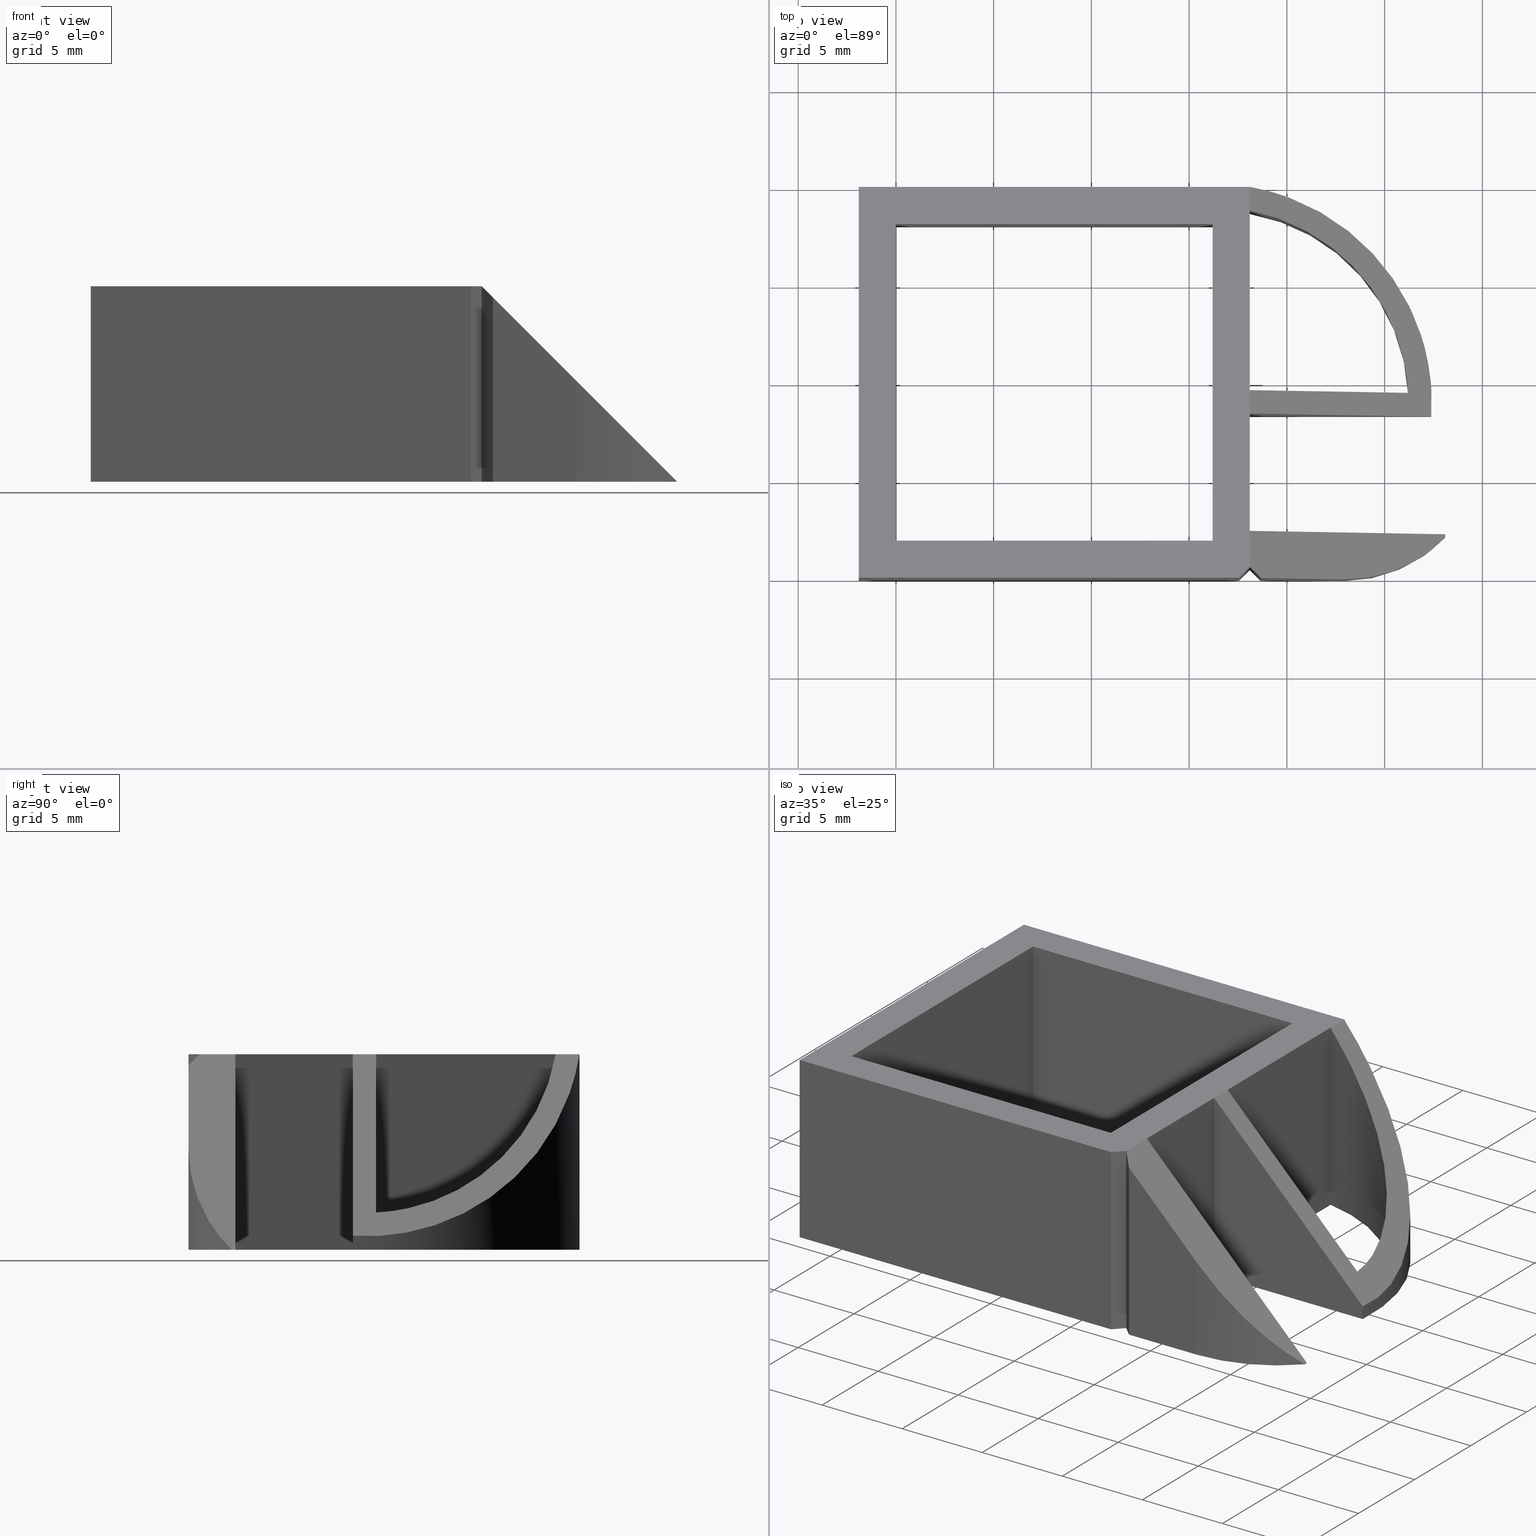
[diagram: canonical four-view strip — front | top / right | iso, engineering-drawing reading convention]
A machine part, canonical four-view strip (front | top / right | iso — engineering-drawing reading convention). The complete STEP part file that produces these views, byte-faithful:
ISO-10303-21;
HEADER;
/****************************************************************
 * Generated by software with PDE/Lib inside                    *
 * PDElib Version v4.4, created Mon 02/23/2004                  *
 * International Technegroup Inc. (www.iti-oh.com)              *
 ****************************************************************/
FILE_DESCRIPTION(('STEP AP203'),'2;1');
FILE_NAME('XF62011G.stp','2011-02-02T12:55:24',(''),(''),'2009.3.110','THINKDESIGN','');
FILE_SCHEMA(('CONFIG_CONTROL_DESIGN'));
ENDSEC;
DATA;
#2=CARTESIAN_POINT('',(28.100000000001501,-7.599999999994865,10.0));
#3=DIRECTION('',(2.022429E-013,-1.0,-1.224647E-016));
#4=DIRECTION('',(-1.0,-2.022429E-013,-2.784524E-030));
#5=AXIS2_PLACEMENT_3D('',#2,#3,#4);
#6=PLANE('',#5);
#7=CARTESIAN_POINT('',(18.100000000001501,-7.599999999996888,10.0));
#8=VERTEX_POINT('',#7);
#9=CARTESIAN_POINT('',(28.100000000001501,-7.599999999994865,0.0));
#10=VERTEX_POINT('',#9);
#11=CARTESIAN_POINT('',(18.100000000001501,-7.599999999996888,10.0));
#12=DIRECTION('',(0.707106781186547,1.430668E-013,-0.707106781186548));
#13=VECTOR('',#12,14.142135623730953);
#14=LINE('',#11,#13);
#15=EDGE_CURVE('',#8,#10,#14,.T.);
#16=ORIENTED_EDGE('',*,*,#15,.T.);
#17=CARTESIAN_POINT('',(18.100000000001501,-7.599999999996888,0.0));
#18=VERTEX_POINT('',#17);
#19=CARTESIAN_POINT('',(28.100000000001501,-7.599999999994865,2.784524E-029));
#20=DIRECTION('',(-1.0,-2.022382E-013,-2.784524E-030));
#21=VECTOR('',#20,10.0);
#22=LINE('',#19,#21);
#23=EDGE_CURVE('',#10,#18,#22,.T.);
#24=ORIENTED_EDGE('',*,*,#23,.T.);
#25=CARTESIAN_POINT('',(18.100000000001501,-7.599999999996888,10.0));
#26=DIRECTION('',(0.0,0.0,-1.0));
#27=VECTOR('',#26,10.0);
#28=LINE('',#25,#27);
#29=EDGE_CURVE('',#8,#18,#28,.T.);
#30=ORIENTED_EDGE('',*,*,#29,.F.);
#31=EDGE_LOOP('',(#16,#24,#30));
#32=FACE_OUTER_BOUND('',#31,.T.);
#33=ADVANCED_FACE('',(#32),#6,.F.);
#34=CARTESIAN_POINT('',(18.100000000001501,-7.599999999996888,10.0));
#35=DIRECTION('',(-1.0,-1.795055E-013,0.0));
#36=DIRECTION('',(-1.795055E-013,1.0,1.224647E-016));
#37=AXIS2_PLACEMENT_3D('',#34,#35,#36);
#38=PLANE('',#37);
#39=CARTESIAN_POINT('',(18.100000000000424,-1.599999999996774,0.0));
#40=VERTEX_POINT('',#39);
#41=CARTESIAN_POINT('',(18.100000000001501,-7.599999999996888,-7.347881E-016));
#42=DIRECTION('',(-1.794120E-013,1.0,1.224647E-016));
#43=VECTOR('',#42,6.000000000000114);
#44=LINE('',#41,#43);
#45=EDGE_CURVE('',#18,#40,#44,.T.);
#46=ORIENTED_EDGE('',*,*,#45,.T.);
#47=CARTESIAN_POINT('',(18.100000000000424,-1.599999999996774,10.0));
#48=VERTEX_POINT('',#47);
#49=CARTESIAN_POINT('',(18.100000000000424,-1.599999999996774,10.0));
#50=DIRECTION('',(0.0,0.0,-1.0));
#51=VECTOR('',#50,10.0);
#52=LINE('',#49,#51);
#53=EDGE_CURVE('',#48,#40,#52,.T.);
#54=ORIENTED_EDGE('',*,*,#53,.F.);
#55=CARTESIAN_POINT('',(18.100000000001501,-7.599999999996888,10.0));
#56=DIRECTION('',(-1.794120E-013,1.0,0.0));
#57=VECTOR('',#56,6.000000000000114);
#58=LINE('',#55,#57);
#59=EDGE_CURVE('',#8,#48,#58,.T.);
#60=ORIENTED_EDGE('',*,*,#59,.F.);
#61=ORIENTED_EDGE('',*,*,#29,.T.);
#62=EDGE_LOOP('',(#46,#54,#60,#61));
#63=FACE_OUTER_BOUND('',#62,.T.);
#64=ADVANCED_FACE('',(#63),#38,.F.);
#65=CARTESIAN_POINT('',(18.100000000000424,-1.599999999996774,10.0));
#66=DIRECTION('',(-1.672615E-013,1.0,1.224647E-016));
#67=DIRECTION('',(1.0,1.672615E-013,-1.499464E-030));
#68=AXIS2_PLACEMENT_3D('',#65,#66,#67);
#69=PLANE('',#68);
#70=CARTESIAN_POINT('',(27.385068294310091,-1.599999999995107,0.0));
#71=VERTEX_POINT('',#70);
#72=CARTESIAN_POINT('',(18.100000000000424,-1.599999999996774,1.392262E-029));
#73=DIRECTION('',(1.0,1.672556E-013,-1.499464E-030));
#74=VECTOR('',#73,9.285068294309895);
#75=LINE('',#72,#74);
#76=EDGE_CURVE('',#40,#71,#75,.T.);
#77=ORIENTED_EDGE('',*,*,#76,.T.);
#78=CARTESIAN_POINT('',(27.385068294310091,-1.599999999995107,0.714931705690177));
#79=VERTEX_POINT('',#78);
#80=CARTESIAN_POINT('',(27.385068294310091,-1.599999999995106,0.714931705690177));
#81=DIRECTION('',(0.0,0.0,-1.0));
#82=VECTOR('',#81,0.714931705690177);
#83=LINE('',#80,#82);
#84=EDGE_CURVE('',#79,#71,#83,.T.);
#85=ORIENTED_EDGE('',*,*,#84,.F.);
#86=CARTESIAN_POINT('',(18.100000000000424,-1.599999999996774,10.0));
#87=DIRECTION('',(0.707106781186542,1.270100E-013,-0.707106781186553));
#88=VECTOR('',#87,13.131069509373262);
#89=LINE('',#86,#88);
#90=EDGE_CURVE('',#48,#79,#89,.T.);
#91=ORIENTED_EDGE('',*,*,#90,.F.);
#92=ORIENTED_EDGE('',*,*,#53,.T.);
#93=EDGE_LOOP('',(#77,#85,#91,#92));
#94=FACE_OUTER_BOUND('',#93,.T.);
#95=ADVANCED_FACE('',(#94),#69,.F.);
#96=CARTESIAN_POINT('',(16.409379536533308,-0.869071622922217,10.0));
#97=DIRECTION('',(2.198309E-029,-1.224647E-016,1.0));
#98=DIRECTION('',(0.997789887070625,-0.066448034279353,-8.137537E-018));
#99=AXIS2_PLACEMENT_3D('',#96,#97,#98);
#100=CYLINDRICAL_SURFACE('',#99,11.0);
#101=CARTESIAN_POINT('',(18.101503070952756,10.000000000003363,0.0));
#102=VERTEX_POINT('',#101);
#103=CARTESIAN_POINT('',(16.409379536533308,-0.869071622922217,1.232595E-032));
#104=DIRECTION('',(2.198309E-029,-1.224647E-016,1.0));
#105=DIRECTION('',(1.0,1.795055E-013,0.0));
#106=AXIS2_PLACEMENT_3D('',#103,#104,#105);
#107=CIRCLE('',#106,11.0);
#108=EDGE_CURVE('',#71,#102,#107,.T.);
#109=ORIENTED_EDGE('',*,*,#108,.T.);
#110=CARTESIAN_POINT('',(18.101503070952756,10.000000000003363,9.998496929044563));
#111=VERTEX_POINT('',#110);
#112=CARTESIAN_POINT('',(18.101503070952756,10.000000000003363,9.998496929044562));
#113=DIRECTION('',(0.0,0.0,-1.0));
#114=VECTOR('',#113,9.998496929044562);
#115=LINE('',#112,#114);
#116=EDGE_CURVE('',#111,#102,#115,.T.);
#117=ORIENTED_EDGE('',*,*,#116,.F.);
#118=CARTESIAN_POINT('',(16.409379536533308,-0.869071622922217,11.690620463465720));
#119=DIRECTION('',(0.707106781186508,1.268430E-013,0.707106781186587));
#120=DIRECTION('',(0.707106781186587,1.270162E-013,-0.707106781186508));
#121=AXIS2_PLACEMENT_3D('',#118,#119,#120);
#122=ELLIPSE('',#121,15.556349186103173,11.0);
#123=EDGE_CURVE('',#79,#111,#122,.T.);
#124=ORIENTED_EDGE('',*,*,#123,.F.);
#125=ORIENTED_EDGE('',*,*,#84,.T.);
#126=EDGE_LOOP('',(#109,#117,#124,#125));
#127=FACE_OUTER_BOUND('',#126,.T.);
#128=ADVANCED_FACE('',(#127),#100,.T.);
#129=CARTESIAN_POINT('',(18.101503070952756,10.000000000003363,10.0));
#130=DIRECTION('',(1.795055E-013,-1.0,-1.224647E-016));
#131=DIRECTION('',(-1.0,-1.795055E-013,0.0));
#132=AXIS2_PLACEMENT_3D('',#129,#130,#131);
#133=PLANE('',#132);
#134=CARTESIAN_POINT('',(18.099999999997205,10.000000000003363,10.0));
#135=VERTEX_POINT('',#134);
#136=CARTESIAN_POINT('',(-1.900000000001659,9.999999999999773,10.0));
#137=VERTEX_POINT('',#136);
#138=CARTESIAN_POINT('',(18.099999999997205,10.000000000003363,10.0));
#139=DIRECTION('',(-1.0,-1.795009E-013,0.0));
#140=VECTOR('',#139,19.999999999998863);
#141=LINE('',#138,#140);
#142=EDGE_CURVE('',#135,#137,#141,.T.);
#143=ORIENTED_EDGE('',*,*,#142,.F.);
#144=CARTESIAN_POINT('',(18.099999999997205,10.000000000003363,10.0));
#145=DIRECTION('',(0.707106781212871,0.0,-0.707106781160224));
#146=VECTOR('',#145,0.002125663330469);
#147=LINE('',#144,#146);
#148=EDGE_CURVE('',#135,#111,#147,.T.);
#149=ORIENTED_EDGE('',*,*,#148,.T.);
#150=ORIENTED_EDGE('',*,*,#116,.T.);
#151=CARTESIAN_POINT('',(-1.900000000001659,9.999999999999773,0.0));
#152=VERTEX_POINT('',#151);
#153=CARTESIAN_POINT('',(18.101503070952756,10.000000000003363,0.0));
#154=DIRECTION('',(-1.0,-1.794874E-013,0.0));
#155=VECTOR('',#154,20.001503070954413);
#156=LINE('',#153,#155);
#157=EDGE_CURVE('',#102,#152,#156,.T.);
#158=ORIENTED_EDGE('',*,*,#157,.T.);
#159=CARTESIAN_POINT('',(-1.900000000001659,9.999999999999773,10.0));
#160=DIRECTION('',(0.0,0.0,-1.0));
#161=VECTOR('',#160,10.0);
#162=LINE('',#159,#161);
#163=EDGE_CURVE('',#137,#152,#162,.T.);
#164=ORIENTED_EDGE('',*,*,#163,.F.);
#165=EDGE_LOOP('',(#143,#149,#150,#158,#164));
#166=FACE_OUTER_BOUND('',#165,.T.);
#167=ADVANCED_FACE('',(#166),#133,.F.);
#168=CARTESIAN_POINT('',(-1.900000000001659,9.999999999999773,10.0));
#169=DIRECTION('',(1.0,1.795055E-013,0.0));
#170=DIRECTION('',(1.795055E-013,-1.0,-1.224647E-016));
#171=AXIS2_PLACEMENT_3D('',#168,#169,#170);
#172=PLANE('',#171);
#173=ORIENTED_EDGE('',*,*,#163,.T.);
#174=CARTESIAN_POINT('',(-1.899999999998069,-10.000000000000227,-1.421085E-014));
#175=VERTEX_POINT('',#174);
#176=CARTESIAN_POINT('',(-1.900000000001659,9.999999999999773,-1.176156E-014));
#177=DIRECTION('',(1.795009E-013,-1.0,-1.224647E-016));
#178=VECTOR('',#177,20.0);
#179=LINE('',#176,#178);
#180=EDGE_CURVE('',#152,#175,#179,.T.);
#181=ORIENTED_EDGE('',*,*,#180,.T.);
#182=CARTESIAN_POINT('',(-1.899999999998069,-10.000000000000227,9.999999999999986));
#183=VERTEX_POINT('',#182);
#184=CARTESIAN_POINT('',(-1.899999999998069,-10.000000000000227,9.999999999999986));
#185=DIRECTION('',(0.0,0.0,-1.0));
#186=VECTOR('',#185,10.0);
#187=LINE('',#184,#186);
#188=EDGE_CURVE('',#183,#175,#187,.T.);
#189=ORIENTED_EDGE('',*,*,#188,.F.);
#190=CARTESIAN_POINT('',(-1.900000000001659,9.999999999999773,9.999999999999988));
#191=DIRECTION('',(1.795009E-013,-1.0,-8.881784E-017));
#192=VECTOR('',#191,20.0);
#193=LINE('',#190,#192);
#194=EDGE_CURVE('',#137,#183,#193,.T.);
#195=ORIENTED_EDGE('',*,*,#194,.F.);
#196=EDGE_LOOP('',(#173,#181,#189,#195));
#197=FACE_OUTER_BOUND('',#196,.T.);
#198=ADVANCED_FACE('',(#197),#172,.F.);
#199=CARTESIAN_POINT('',(-1.899999999998069,-10.000000000000227,9.999999999999986));
#200=DIRECTION('',(-1.795055E-013,1.0,1.224647E-016));
#201=DIRECTION('',(1.0,1.795055E-013,0.0));
#202=AXIS2_PLACEMENT_3D('',#199,#200,#201);
#203=PLANE('',#202);
#204=ORIENTED_EDGE('',*,*,#188,.T.);
#205=CARTESIAN_POINT('',(17.534314575052779,-9.999999999996739,-1.421085E-014));
#206=VERTEX_POINT('',#205);
#207=CARTESIAN_POINT('',(-1.899999999998069,-10.000000000000227,-1.421085E-014));
#208=DIRECTION('',(1.0,1.795157E-013,0.0));
#209=VECTOR('',#208,19.434314575050848);
#210=LINE('',#207,#209);
#211=EDGE_CURVE('',#175,#206,#210,.T.);
#212=ORIENTED_EDGE('',*,*,#211,.T.);
#213=CARTESIAN_POINT('',(17.534314575052779,-9.999999999996739,9.999999999999986));
#214=VERTEX_POINT('',#213);
#215=CARTESIAN_POINT('',(17.534314575052779,-9.999999999996739,9.999999999999986));
#216=DIRECTION('',(0.0,0.0,-1.0));
#217=VECTOR('',#216,10.0);
#218=LINE('',#215,#217);
#219=EDGE_CURVE('',#214,#206,#218,.T.);
#220=ORIENTED_EDGE('',*,*,#219,.F.);
#221=CARTESIAN_POINT('',(-1.899999999998069,-10.000000000000227,9.999999999999986));
#222=DIRECTION('',(1.0,1.795157E-013,0.0));
#223=VECTOR('',#222,19.434314575050848);
#224=LINE('',#221,#223);
#225=EDGE_CURVE('',#183,#214,#224,.T.);
#226=ORIENTED_EDGE('',*,*,#225,.F.);
#227=EDGE_LOOP('',(#204,#212,#220,#226));
#228=FACE_OUTER_BOUND('',#227,.T.);
#229=ADVANCED_FACE('',(#228),#203,.F.);
#230=CARTESIAN_POINT('',(17.534314575052779,-9.999999999996739,9.999999999999986));
#231=DIRECTION('',(-0.707106781186532,0.707106781186563,8.659561E-017));
#232=DIRECTION('',(0.707106781186563,0.707106781186532,8.659561E-017));
#233=AXIS2_PLACEMENT_3D('',#230,#231,#232);
#234=PLANE('',#233);
#235=ORIENTED_EDGE('',*,*,#219,.T.);
#236=CARTESIAN_POINT('',(18.100000000001831,-9.434314575047713,-1.421085E-014));
#237=VERTEX_POINT('',#236);
#238=CARTESIAN_POINT('',(17.534314575052779,-9.999999999996739,-1.421085E-014));
#239=DIRECTION('',(0.707106781186562,0.707106781186533,8.659561E-017));
#240=VECTOR('',#239,0.799999999999716);
#241=LINE('',#238,#240);
#242=EDGE_CURVE('',#206,#237,#241,.T.);
#243=ORIENTED_EDGE('',*,*,#242,.T.);
#244=CARTESIAN_POINT('',(18.100000000001831,-9.434314575047713,9.999999999999986));
#245=VERTEX_POINT('',#244);
#246=CARTESIAN_POINT('',(18.100000000001831,-9.434314575047713,9.999999999999986));
#247=DIRECTION('',(0.0,0.0,-1.0));
#248=VECTOR('',#247,10.0);
#249=LINE('',#246,#248);
#250=EDGE_CURVE('',#245,#237,#249,.T.);
#251=ORIENTED_EDGE('',*,*,#250,.F.);
#252=CARTESIAN_POINT('',(17.534314575052779,-9.999999999996739,9.999999999999986));
#253=DIRECTION('',(0.707106781186562,0.707106781186533,0.0));
#254=VECTOR('',#253,0.799999999999716);
#255=LINE('',#252,#254);
#256=EDGE_CURVE('',#214,#245,#255,.T.);
#257=ORIENTED_EDGE('',*,*,#256,.F.);
#258=EDGE_LOOP('',(#235,#243,#251,#257));
#259=FACE_OUTER_BOUND('',#258,.T.);
#260=ADVANCED_FACE('',(#259),#234,.F.);
#261=CARTESIAN_POINT('',(18.100000000001831,-9.434314575047713,9.999999999999986));
#262=DIRECTION('',(0.707106781186421,0.707106781186674,8.659561E-017));
#263=DIRECTION('',(0.707106781186674,-0.707106781186421,-8.659561E-017));
#264=AXIS2_PLACEMENT_3D('',#261,#262,#263);
#265=PLANE('',#264);
#266=CARTESIAN_POINT('',(18.665685424950855,-9.999999999996536,-1.421085E-014));
#267=VERTEX_POINT('',#266);
#268=CARTESIAN_POINT('',(18.100000000001831,-9.434314575047713,-1.421085E-014));
#269=DIRECTION('',(0.707106781186675,-0.707106781186420,-8.659561E-017));
#270=VECTOR('',#269,0.799999999999558);
#271=LINE('',#268,#270);
#272=EDGE_CURVE('',#237,#267,#271,.T.);
#273=ORIENTED_EDGE('',*,*,#272,.T.);
#274=CARTESIAN_POINT('',(18.665685424950855,-9.999999999996536,9.434314575049996));
#275=VERTEX_POINT('',#274);
#276=CARTESIAN_POINT('',(18.665685424950855,-9.999999999996536,9.434314575049989));
#277=DIRECTION('',(0.0,0.0,-1.0));
#278=VECTOR('',#277,9.434314575050003);
#279=LINE('',#276,#278);
#280=EDGE_CURVE('',#275,#267,#279,.T.);
#281=ORIENTED_EDGE('',*,*,#280,.F.);
#282=CARTESIAN_POINT('',(18.100000000001831,-9.434314575047713,9.999999999999986));
#283=DIRECTION('',(0.577350269189365,-0.577350269189157,-0.577350269190355));
#284=VECTOR('',#283,0.979795897113348);
#285=LINE('',#282,#284);
#286=EDGE_CURVE('',#245,#275,#285,.T.);
#287=ORIENTED_EDGE('',*,*,#286,.F.);
#288=ORIENTED_EDGE('',*,*,#250,.T.);
#289=EDGE_LOOP('',(#273,#281,#287,#288));
#290=FACE_OUTER_BOUND('',#289,.T.);
#291=ADVANCED_FACE('',(#290),#265,.F.);
#292=CARTESIAN_POINT('',(18.665685424950855,-9.999999999996536,9.999999999999986));
#293=DIRECTION('',(-1.795055E-013,1.0,1.224647E-016));
#294=DIRECTION('',(1.0,1.795055E-013,0.0));
#295=AXIS2_PLACEMENT_3D('',#292,#293,#294);
#296=PLANE('',#295);
#297=CARTESIAN_POINT('',(22.900000000001885,-9.999999999995776,-1.421085E-014));
#298=VERTEX_POINT('',#297);
#299=CARTESIAN_POINT('',(18.665685424950855,-9.999999999996536,-1.421085E-014));
#300=DIRECTION('',(1.0,1.795523E-013,0.0));
#301=VECTOR('',#300,4.234314575051030);
#302=LINE('',#299,#301);
#303=EDGE_CURVE('',#267,#298,#302,.T.);
#304=ORIENTED_EDGE('',*,*,#303,.T.);
#305=CARTESIAN_POINT('',(22.900000000001885,-9.999999999995776,5.199999999999434));
#306=VERTEX_POINT('',#305);
#307=CARTESIAN_POINT('',(22.900000000001885,-9.999999999995776,5.199999999999440));
#308=DIRECTION('',(0.0,0.0,-1.0));
#309=VECTOR('',#308,5.199999999999454);
#310=LINE('',#307,#309);
#311=EDGE_CURVE('',#306,#298,#310,.T.);
#312=ORIENTED_EDGE('',*,*,#311,.F.);
#313=CARTESIAN_POINT('',(22.900000000001885,-9.999999999995776,5.199999999999439));
#314=DIRECTION('',(-0.707106781186588,-1.269626E-013,0.707106781186507));
#315=VECTOR('',#314,5.988225099390896);
#316=LINE('',#313,#315);
#317=EDGE_CURVE('',#306,#275,#316,.T.);
#318=ORIENTED_EDGE('',*,*,#317,.T.);
#319=ORIENTED_EDGE('',*,*,#280,.T.);
#320=EDGE_LOOP('',(#304,#312,#318,#319));
#321=FACE_OUTER_BOUND('',#320,.T.);
#322=ADVANCED_FACE('',(#321),#296,.F.);
#323=CARTESIAN_POINT('',(22.900000000000592,-2.799999999995730,10.0));
#324=DIRECTION('',(2.198309E-029,-1.224647E-016,1.0));
#325=DIRECTION('',(1.0,1.795055E-013,0.0));
#326=AXIS2_PLACEMENT_3D('',#323,#324,#325);
#327=CYLINDRICAL_SURFACE('',#326,7.200000000000000);
#328=ORIENTED_EDGE('',*,*,#311,.T.);
#329=CARTESIAN_POINT('',(28.100000000001533,-7.779959839175107,0.0));
#330=VERTEX_POINT('',#329);
#331=CARTESIAN_POINT('',(22.900000000000592,-2.799999999995730,0.0));
#332=DIRECTION('',(2.198309E-029,-1.224647E-016,1.0));
#333=DIRECTION('',(1.0,1.795055E-013,0.0));
#334=AXIS2_PLACEMENT_3D('',#331,#332,#333);
#335=CIRCLE('',#334,7.200000000000000);
#336=EDGE_CURVE('',#298,#330,#335,.T.);
#337=ORIENTED_EDGE('',*,*,#336,.T.);
#338=CARTESIAN_POINT('',(22.900000000000595,-2.799999999995730,5.199999999999392));
#339=DIRECTION('',(0.707106781186508,1.268430E-013,0.707106781186587));
#340=DIRECTION('',(0.707106781186587,1.270162E-013,-0.707106781186508));
#341=AXIS2_PLACEMENT_3D('',#338,#339,#340);
#342=ELLIPSE('',#341,10.182337649085714,7.200000000000000);
#343=EDGE_CURVE('',#306,#330,#342,.T.);
#344=ORIENTED_EDGE('',*,*,#343,.F.);
#345=EDGE_LOOP('',(#328,#337,#344));
#346=FACE_OUTER_BOUND('',#345,.T.);
#347=ADVANCED_FACE('',(#346),#327,.T.);
#348=CARTESIAN_POINT('',(-1.453995E-012,8.100000000000023,10.0));
#349=DIRECTION('',(-1.795055E-013,1.0,1.224647E-016));
#350=DIRECTION('',(1.0,1.795055E-013,0.0));
#351=AXIS2_PLACEMENT_3D('',#348,#349,#350);
#352=PLANE('',#351);
#353=CARTESIAN_POINT('',(-1.453995E-012,8.100000000000023,10.0));
#354=VERTEX_POINT('',#353);
#355=CARTESIAN_POINT('',(-1.453995E-012,8.100000000000023,0.0));
#356=VERTEX_POINT('',#355);
#357=CARTESIAN_POINT('',(-1.453995E-012,8.100000000000023,10.0));
#358=DIRECTION('',(0.0,0.0,-1.0));
#359=VECTOR('',#358,10.0);
#360=LINE('',#357,#359);
#361=EDGE_CURVE('',#354,#356,#360,.T.);
#362=ORIENTED_EDGE('',*,*,#361,.T.);
#363=CARTESIAN_POINT('',(16.199999999998592,8.100000000002931,0.0));
#364=VERTEX_POINT('',#363);
#365=CARTESIAN_POINT('',(-1.453995E-012,8.100000000000023,0.0));
#366=DIRECTION('',(1.0,1.794998E-013,0.0));
#367=VECTOR('',#366,16.200000000000045);
#368=LINE('',#365,#367);
#369=EDGE_CURVE('',#356,#364,#368,.T.);
#370=ORIENTED_EDGE('',*,*,#369,.T.);
#371=CARTESIAN_POINT('',(16.199999999998592,8.100000000002931,10.0));
#372=VERTEX_POINT('',#371);
#373=CARTESIAN_POINT('',(16.199999999998592,8.100000000002931,10.0));
#374=DIRECTION('',(0.0,0.0,-1.0));
#375=VECTOR('',#374,10.0);
#376=LINE('',#373,#375);
#377=EDGE_CURVE('',#372,#364,#376,.T.);
#378=ORIENTED_EDGE('',*,*,#377,.F.);
#379=CARTESIAN_POINT('',(-1.453995E-012,8.100000000000023,10.0));
#380=DIRECTION('',(1.0,1.794998E-013,0.0));
#381=VECTOR('',#380,16.200000000000045);
#382=LINE('',#379,#381);
#383=EDGE_CURVE('',#354,#372,#382,.T.);
#384=ORIENTED_EDGE('',*,*,#383,.F.);
#385=EDGE_LOOP('',(#362,#370,#378,#384));
#386=FACE_OUTER_BOUND('',#385,.T.);
#387=ADVANCED_FACE('',(#386),#352,.F.);
#388=CARTESIAN_POINT('',(16.199999999998592,8.100000000002931,10.0));
#389=DIRECTION('',(1.0,1.795055E-013,0.0));
#390=DIRECTION('',(1.795055E-013,-1.0,-1.224647E-016));
#391=AXIS2_PLACEMENT_3D('',#388,#389,#390);
#392=PLANE('',#391);
#393=ORIENTED_EDGE('',*,*,#377,.T.);
#394=CARTESIAN_POINT('',(16.200000000001499,-8.099999999997229,0.0));
#395=VERTEX_POINT('',#394);
#396=CARTESIAN_POINT('',(16.199999999998592,8.100000000002931,0.0));
#397=DIRECTION('',(1.796094E-013,-1.0,-1.224647E-016));
#398=VECTOR('',#397,16.200000000000159);
#399=LINE('',#396,#398);
#400=EDGE_CURVE('',#364,#395,#399,.T.);
#401=ORIENTED_EDGE('',*,*,#400,.T.);
#402=CARTESIAN_POINT('',(16.200000000001499,-8.099999999997229,10.0));
#403=VERTEX_POINT('',#402);
#404=CARTESIAN_POINT('',(16.200000000001499,-8.099999999997229,10.0));
#405=DIRECTION('',(0.0,0.0,-1.0));
#406=VECTOR('',#405,10.0);
#407=LINE('',#404,#406);
#408=EDGE_CURVE('',#403,#395,#407,.T.);
#409=ORIENTED_EDGE('',*,*,#408,.F.);
#410=CARTESIAN_POINT('',(16.199999999998592,8.100000000002931,10.0));
#411=DIRECTION('',(1.796094E-013,-1.0,-1.096517E-016));
#412=VECTOR('',#411,16.200000000000159);
#413=LINE('',#410,#412);
#414=EDGE_CURVE('',#372,#403,#413,.T.);
#415=ORIENTED_EDGE('',*,*,#414,.F.);
#416=EDGE_LOOP('',(#393,#401,#409,#415));
#417=FACE_OUTER_BOUND('',#416,.T.);
#418=ADVANCED_FACE('',(#417),#392,.F.);
#419=CARTESIAN_POINT('',(16.200000000001499,-8.099999999997229,10.0));
#420=DIRECTION('',(1.795055E-013,-1.0,-1.224647E-016));
#421=DIRECTION('',(-1.0,-1.795055E-013,0.0));
#422=AXIS2_PLACEMENT_3D('',#419,#420,#421);
#423=PLANE('',#422);
#424=ORIENTED_EDGE('',*,*,#408,.T.);
#425=CARTESIAN_POINT('',(1.453995E-012,-8.100000000000136,0.0));
#426=VERTEX_POINT('',#425);
#427=CARTESIAN_POINT('',(16.200000000001499,-8.099999999997229,0.0));
#428=DIRECTION('',(-1.0,-1.794998E-013,0.0));
#429=VECTOR('',#428,16.200000000000045);
#430=LINE('',#427,#429);
#431=EDGE_CURVE('',#395,#426,#430,.T.);
#432=ORIENTED_EDGE('',*,*,#431,.T.);
#433=CARTESIAN_POINT('',(1.453995E-012,-8.100000000000136,10.0));
#434=VERTEX_POINT('',#433);
#435=CARTESIAN_POINT('',(1.453995E-012,-8.100000000000136,10.0));
#436=DIRECTION('',(0.0,0.0,-1.0));
#437=VECTOR('',#436,10.0);
#438=LINE('',#435,#437);
#439=EDGE_CURVE('',#434,#426,#438,.T.);
#440=ORIENTED_EDGE('',*,*,#439,.F.);
#441=CARTESIAN_POINT('',(16.200000000001499,-8.099999999997229,10.0));
#442=DIRECTION('',(-1.0,-1.794998E-013,0.0));
#443=VECTOR('',#442,16.200000000000045);
#444=LINE('',#441,#443);
#445=EDGE_CURVE('',#403,#434,#444,.T.);
#446=ORIENTED_EDGE('',*,*,#445,.F.);
#447=EDGE_LOOP('',(#424,#432,#440,#446));
#448=FACE_OUTER_BOUND('',#447,.T.);
#449=ADVANCED_FACE('',(#448),#423,.F.);
#450=CARTESIAN_POINT('',(1.453995E-012,-8.100000000000136,10.0));
#451=DIRECTION('',(-1.0,-1.795055E-013,0.0));
#452=DIRECTION('',(-1.795055E-013,1.0,1.224647E-016));
#453=AXIS2_PLACEMENT_3D('',#450,#451,#452);
#454=PLANE('',#453);
#455=ORIENTED_EDGE('',*,*,#439,.T.);
#456=CARTESIAN_POINT('',(1.453995E-012,-8.100000000000136,0.0));
#457=DIRECTION('',(-1.795055E-013,1.0,1.224647E-016));
#458=VECTOR('',#457,16.200000000000159);
#459=LINE('',#456,#458);
#460=EDGE_CURVE('',#426,#356,#459,.T.);
#461=ORIENTED_EDGE('',*,*,#460,.T.);
#462=ORIENTED_EDGE('',*,*,#361,.F.);
#463=CARTESIAN_POINT('',(1.453995E-012,-8.100000000000136,10.0));
#464=DIRECTION('',(-1.795055E-013,1.0,1.096517E-016));
#465=VECTOR('',#464,16.200000000000159);
#466=LINE('',#463,#465);
#467=EDGE_CURVE('',#434,#354,#466,.T.);
#468=ORIENTED_EDGE('',*,*,#467,.F.);
#469=EDGE_LOOP('',(#455,#461,#462,#468));
#470=FACE_OUTER_BOUND('',#469,.T.);
#471=ADVANCED_FACE('',(#470),#454,.F.);
#472=CARTESIAN_POINT('',(26.198147171563122,-0.399999999995161,10.0));
#473=DIRECTION('',(1.935442E-013,-1.0,-1.224647E-016));
#474=DIRECTION('',(-1.0,-1.935442E-013,-1.719236E-030));
#475=AXIS2_PLACEMENT_3D('',#472,#473,#474);
#476=PLANE('',#475);
#477=CARTESIAN_POINT('',(26.198147171563122,-0.399999999995161,0.0));
#478=VERTEX_POINT('',#477);
#479=CARTESIAN_POINT('',(18.100000000000207,-0.399999999996728,0.0));
#480=VERTEX_POINT('',#479);
#481=CARTESIAN_POINT('',(26.198147171563122,-0.399999999995161,0.0));
#482=DIRECTION('',(-1.0,-1.935452E-013,-1.719236E-030));
#483=VECTOR('',#482,8.098147171562914);
#484=LINE('',#481,#483);
#485=EDGE_CURVE('',#478,#480,#484,.T.);
#486=ORIENTED_EDGE('',*,*,#485,.T.);
#487=CARTESIAN_POINT('',(18.100000000000207,-0.399999999996728,10.0));
#488=VERTEX_POINT('',#487);
#489=CARTESIAN_POINT('',(18.100000000000207,-0.399999999996728,10.0));
#490=DIRECTION('',(0.0,0.0,-1.0));
#491=VECTOR('',#490,10.0);
#492=LINE('',#489,#491);
#493=EDGE_CURVE('',#488,#480,#492,.T.);
#494=ORIENTED_EDGE('',*,*,#493,.F.);
#495=CARTESIAN_POINT('',(26.198147171563122,-0.399999999995161,1.901852828436830));
#496=VERTEX_POINT('',#495);
#497=CARTESIAN_POINT('',(18.100000000000207,-0.399999999996728,10.0));
#498=DIRECTION('',(0.707106781186536,1.369444E-013,-0.707106781186559));
#499=VECTOR('',#498,11.452509560117774);
#500=LINE('',#497,#499);
#501=EDGE_CURVE('',#488,#496,#500,.T.);
#502=ORIENTED_EDGE('',*,*,#501,.T.);
#503=CARTESIAN_POINT('',(26.198147171563122,-0.399999999995160,1.901852828436830));
#504=DIRECTION('',(0.0,0.0,-1.0));
#505=VECTOR('',#504,1.901852828436830);
#506=LINE('',#503,#505);
#507=EDGE_CURVE('',#496,#478,#506,.T.);
#508=ORIENTED_EDGE('',*,*,#507,.T.);
#509=EDGE_LOOP('',(#486,#494,#502,#508));
#510=FACE_OUTER_BOUND('',#509,.T.);
#511=ADVANCED_FACE('',(#510),#476,.F.);
#512=CARTESIAN_POINT('',(18.100000000000207,-0.399999999996728,10.0));
#513=DIRECTION('',(-1.0,-1.795055E-013,0.0));
#514=DIRECTION('',(-1.795055E-013,1.0,1.224647E-016));
#515=AXIS2_PLACEMENT_3D('',#512,#513,#514);
#516=PLANE('',#515);
#517=CARTESIAN_POINT('',(18.099999999997422,8.784000553774556,0.0));
#518=VERTEX_POINT('',#517);
#519=CARTESIAN_POINT('',(18.100000000000207,-0.399999999996728,-1.124716E-015));
#520=DIRECTION('',(-1.794925E-013,1.0,1.224647E-016));
#521=VECTOR('',#520,9.184000553772989);
#522=LINE('',#519,#521);
#523=EDGE_CURVE('',#480,#518,#522,.T.);
#524=ORIENTED_EDGE('',*,*,#523,.T.);
#525=CARTESIAN_POINT('',(18.099999999997422,8.784000553774556,10.0));
#526=VERTEX_POINT('',#525);
#527=CARTESIAN_POINT('',(18.099999999997422,8.784000553774556,10.0));
#528=DIRECTION('',(0.0,0.0,-1.0));
#529=VECTOR('',#528,10.0);
#530=LINE('',#527,#529);
#531=EDGE_CURVE('',#526,#518,#530,.T.);
#532=ORIENTED_EDGE('',*,*,#531,.F.);
#533=CARTESIAN_POINT('',(18.100000000000207,-0.399999999996728,9.999999999999998));
#534=DIRECTION('',(-1.794925E-013,1.0,1.934186E-016));
#535=VECTOR('',#534,9.184000553772989);
#536=LINE('',#533,#535);
#537=EDGE_CURVE('',#488,#526,#536,.T.);
#538=ORIENTED_EDGE('',*,*,#537,.F.);
#539=ORIENTED_EDGE('',*,*,#493,.T.);
#540=EDGE_LOOP('',(#524,#532,#538,#539));
#541=FACE_OUTER_BOUND('',#540,.T.);
#542=ADVANCED_FACE('',(#541),#516,.F.);
#543=CARTESIAN_POINT('',(16.409379536533308,-0.869071622922217,10.0));
#544=DIRECTION('',(-2.198309E-029,1.224647E-016,-1.0));
#545=DIRECTION('',(0.172512292190215,0.985007364969053,1.206286E-016));
#546=AXIS2_PLACEMENT_3D('',#543,#544,#545);
#547=CYLINDRICAL_SURFACE('',#546,9.800000000000001);
#548=ORIENTED_EDGE('',*,*,#507,.F.);
#549=CARTESIAN_POINT('',(16.409379536533308,-0.869071622922217,11.690620463465720));
#550=DIRECTION('',(-0.707106781186508,-1.268430E-013,-0.707106781186587));
#551=DIRECTION('',(0.707106781186587,1.270162E-013,-0.707106781186508));
#552=AXIS2_PLACEMENT_3D('',#549,#550,#551);
#553=ELLIPSE('',#552,13.859292911255555,9.800000000000001);
#554=EDGE_CURVE('',#526,#496,#553,.T.);
#555=ORIENTED_EDGE('',*,*,#554,.F.);
#556=ORIENTED_EDGE('',*,*,#531,.T.);
#557=CARTESIAN_POINT('',(16.409379536533308,-0.869071622922217,1.232595E-032));
#558=DIRECTION('',(-2.198309E-029,1.224647E-016,-1.0));
#559=DIRECTION('',(1.0,1.795055E-013,0.0));
#560=AXIS2_PLACEMENT_3D('',#557,#558,#559);
#561=CIRCLE('',#560,9.800000000000001);
#562=EDGE_CURVE('',#518,#478,#561,.T.);
#563=ORIENTED_EDGE('',*,*,#562,.T.);
#564=EDGE_LOOP('',(#548,#555,#556,#563));
#565=FACE_OUTER_BOUND('',#564,.T.);
#566=ADVANCED_FACE('',(#565),#547,.F.);
#567=CARTESIAN_POINT('',(-4.900120004848197,-12.000120004923444,9.999999999999986));
#568=DIRECTION('',(0.0,0.0,1.0));
#569=DIRECTION('',(1.0,1.795055E-013,0.0));
#570=AXIS2_PLACEMENT_3D('',#567,#568,#569);
#571=PLANE('',#570);
#572=ORIENTED_EDGE('',*,*,#194,.T.);
#573=ORIENTED_EDGE('',*,*,#225,.T.);
#574=ORIENTED_EDGE('',*,*,#256,.T.);
#575=CARTESIAN_POINT('',(18.100000000000691,-9.434314575047713,9.999999999999986));
#576=DIRECTION('',(-1.781863E-013,1.0,0.0));
#577=VECTOR('',#576,1.834314575050826);
#578=LINE('',#575,#577);
#579=EDGE_CURVE('',#245,#8,#578,.T.);
#580=ORIENTED_EDGE('',*,*,#579,.T.);
#581=ORIENTED_EDGE('',*,*,#59,.T.);
#582=CARTESIAN_POINT('',(18.099999999999287,-1.599999999996774,9.999999999999988));
#583=DIRECTION('',(-1.805963E-013,1.0,0.0));
#584=VECTOR('',#583,1.200000000000046);
#585=LINE('',#582,#584);
#586=EDGE_CURVE('',#48,#488,#585,.T.);
#587=ORIENTED_EDGE('',*,*,#586,.T.);
#588=ORIENTED_EDGE('',*,*,#537,.T.);
#589=CARTESIAN_POINT('',(18.099999999997422,8.784000553774556,9.999999999999988));
#590=DIRECTION('',(-1.811417E-013,1.0,0.0));
#591=VECTOR('',#590,1.215999446228807);
#592=LINE('',#589,#591);
#593=EDGE_CURVE('',#526,#135,#592,.T.);
#594=ORIENTED_EDGE('',*,*,#593,.T.);
#595=ORIENTED_EDGE('',*,*,#142,.T.);
#596=EDGE_LOOP('',(#572,#573,#574,#580,#581,#587,#588,#594,#595));
#597=FACE_OUTER_BOUND('',#596,.T.);
#598=ORIENTED_EDGE('',*,*,#383,.T.);
#599=ORIENTED_EDGE('',*,*,#414,.T.);
#600=ORIENTED_EDGE('',*,*,#445,.T.);
#601=ORIENTED_EDGE('',*,*,#467,.T.);
#602=EDGE_LOOP('',(#598,#599,#600,#601));
#603=FACE_BOUND('',#602,.T.);
#604=ADVANCED_FACE('',(#597,#603),#571,.T.);
#605=CARTESIAN_POINT('',(-4.900120004848197,-12.000120004923444,-1.421085E-014));
#606=DIRECTION('',(0.0,0.0,1.0));
#607=DIRECTION('',(1.0,1.795055E-013,0.0));
#608=AXIS2_PLACEMENT_3D('',#605,#606,#607);
#609=PLANE('',#608);
#610=ORIENTED_EDGE('',*,*,#23,.F.);
#611=CARTESIAN_POINT('',(28.100000000001533,-7.779959839175107,-2.203872E-017));
#612=DIRECTION('',(-1.776753E-013,1.0,1.224647E-016));
#613=VECTOR('',#612,0.179959839180242);
#614=LINE('',#611,#613);
#615=EDGE_CURVE('',#330,#10,#614,.T.);
#616=ORIENTED_EDGE('',*,*,#615,.F.);
#617=ORIENTED_EDGE('',*,*,#336,.F.);
#618=ORIENTED_EDGE('',*,*,#303,.F.);
#619=ORIENTED_EDGE('',*,*,#272,.F.);
#620=ORIENTED_EDGE('',*,*,#242,.F.);
#621=ORIENTED_EDGE('',*,*,#211,.F.);
#622=ORIENTED_EDGE('',*,*,#180,.F.);
#623=ORIENTED_EDGE('',*,*,#157,.F.);
#624=ORIENTED_EDGE('',*,*,#108,.F.);
#625=ORIENTED_EDGE('',*,*,#76,.F.);
#626=ORIENTED_EDGE('',*,*,#45,.F.);
#627=EDGE_LOOP('',(#610,#616,#617,#618,#619,#620,#621,#622,#623,#624,#625,#626));
#628=FACE_OUTER_BOUND('',#627,.T.);
#629=ORIENTED_EDGE('',*,*,#460,.F.);
#630=ORIENTED_EDGE('',*,*,#431,.F.);
#631=ORIENTED_EDGE('',*,*,#400,.F.);
#632=ORIENTED_EDGE('',*,*,#369,.F.);
#633=EDGE_LOOP('',(#629,#630,#631,#632));
#634=FACE_BOUND('',#633,.T.);
#635=ORIENTED_EDGE('',*,*,#562,.F.);
#636=ORIENTED_EDGE('',*,*,#523,.F.);
#637=ORIENTED_EDGE('',*,*,#485,.F.);
#638=EDGE_LOOP('',(#635,#636,#637));
#639=FACE_BOUND('',#638,.T.);
#640=ADVANCED_FACE('',(#628,#634,#639),#609,.F.);
#641=CARTESIAN_POINT('',(33.132922896407969,-9.999999999993939,-5.032922896405495));
#642=DIRECTION('',(-0.707106781186508,-1.268430E-013,-0.707106781186587));
#643=DIRECTION('',(-0.707106781186587,-1.270162E-013,0.707106781186508));
#644=AXIS2_PLACEMENT_3D('',#641,#642,#643);
#645=PLANE('',#644);
#646=ORIENTED_EDGE('',*,*,#286,.T.);
#647=ORIENTED_EDGE('',*,*,#317,.F.);
#648=ORIENTED_EDGE('',*,*,#343,.T.);
#649=ORIENTED_EDGE('',*,*,#615,.T.);
#650=ORIENTED_EDGE('',*,*,#15,.F.);
#651=ORIENTED_EDGE('',*,*,#579,.F.);
#652=EDGE_LOOP('',(#646,#647,#648,#649,#650,#651));
#653=FACE_OUTER_BOUND('',#652,.T.);
#654=ADVANCED_FACE('',(#653),#645,.F.);
#655=CARTESIAN_POINT('',(33.132922896407969,-9.999999999993939,-5.032922896405495));
#656=DIRECTION('',(-0.707106781186508,-1.268430E-013,-0.707106781186587));
#657=DIRECTION('',(-0.707106781186587,-1.270162E-013,0.707106781186508));
#658=AXIS2_PLACEMENT_3D('',#655,#656,#657);
#659=PLANE('',#658);
#660=ORIENTED_EDGE('',*,*,#90,.T.);
#661=ORIENTED_EDGE('',*,*,#123,.T.);
#662=ORIENTED_EDGE('',*,*,#148,.F.);
#663=ORIENTED_EDGE('',*,*,#593,.F.);
#664=ORIENTED_EDGE('',*,*,#554,.T.);
#665=ORIENTED_EDGE('',*,*,#501,.F.);
#666=ORIENTED_EDGE('',*,*,#586,.F.);
#667=EDGE_LOOP('',(#660,#661,#662,#663,#664,#665,#666));
#668=FACE_OUTER_BOUND('',#667,.T.);
#669=ADVANCED_FACE('',(#668),#659,.F.);
#670=CLOSED_SHELL('',(#33,#64,#95,#128,#167,#198,#229,#260,#291,#322,#347,#387,#418,#449,#471,#511,#542,#566,#604,#640,#654,#669));
#671=MANIFOLD_SOLID_BREP('',#670);
#677=(NAMED_UNIT(*)PLANE_ANGLE_UNIT()SI_UNIT($,.RADIAN.));
#678=DIMENSIONAL_EXPONENTS(0.0,0.0,0.0,0.0,0.0,0.0,0.0);
#679=PLANE_ANGLE_MEASURE_WITH_UNIT(PLANE_ANGLE_MEASURE(0.017453292500000),#677);
#683=(CONVERSION_BASED_UNIT('DEGREE',#679)NAMED_UNIT(#678)PLANE_ANGLE_UNIT());
#687=(NAMED_UNIT(*)SI_UNIT($,.STERADIAN.)SOLID_ANGLE_UNIT());
#691=(LENGTH_UNIT()NAMED_UNIT(*)SI_UNIT(.MILLI.,.METRE.));
#693=UNCERTAINTY_MEASURE_WITH_UNIT(LENGTH_MEASURE(0.001000000000000),#691,'DISTANCE_ACCURACY_VALUE','');
#695=(GEOMETRIC_REPRESENTATION_CONTEXT(3)GLOBAL_UNCERTAINTY_ASSIGNED_CONTEXT((#693))GLOBAL_UNIT_ASSIGNED_CONTEXT((#683,#687,#691))REPRESENTATION_CONTEXT('thinkdesign','2009.3.110'));
#696=ADVANCED_BREP_SHAPE_REPRESENTATION('',(#671),#695);
#697=APPLICATION_CONTEXT('configuration controlled 3D designs of mechanical parts and assemblies');
#698=APPLICATION_PROTOCOL_DEFINITION('International Standard','config_control_design',1995,#697);
#699=MECHANICAL_CONTEXT('None',#697,'mechanical');
#700=PRODUCT('None','None','None',(#699));
#701=PRODUCT_RELATED_PRODUCT_CATEGORY('detail',$,(#700));
#702=PRODUCT_CATEGORY('part',$);
#703=PRODUCT_CATEGORY_RELATIONSHIP('None','None',#702,#701);
#704=PERSON('PERSON1','None','None',$,$,$);
#705=ORGANIZATION('','None','None');
#706=PERSON_AND_ORGANIZATION(#704,#705);
#707=PERSON_AND_ORGANIZATION_ROLE('design_owner');
#708=CC_DESIGN_PERSON_AND_ORGANIZATION_ASSIGNMENT(#706,#707,(#700));
#709=PRODUCT_DEFINITION_FORMATION_WITH_SPECIFIED_SOURCE('None','None',#700,.NOT_KNOWN.);
#710=PERSON('PERSON2','None','None',$,$,$);
#711=ORGANIZATION('','None','None');
#712=PERSON_AND_ORGANIZATION(#710,#711);
#713=PERSON_AND_ORGANIZATION_ROLE('creator');
#714=CC_DESIGN_PERSON_AND_ORGANIZATION_ASSIGNMENT(#712,#713,(#709));
#715=PERSON('PERSON3','None','None',$,$,$);
#716=ORGANIZATION('','None','None');
#717=PERSON_AND_ORGANIZATION(#715,#716);
#718=PERSON_AND_ORGANIZATION_ROLE('part_supplier');
#719=CC_DESIGN_PERSON_AND_ORGANIZATION_ASSIGNMENT(#717,#718,(#709));
#720=APPROVAL_STATUS('approved');
#721=APPROVAL(#720,'None');
#722=PERSON('PERSON4','None','None',$,$,$);
#723=ORGANIZATION('','None','None');
#724=PERSON_AND_ORGANIZATION(#722,#723);
#725=APPROVAL_ROLE('None');
#726=APPROVAL_PERSON_ORGANIZATION(#724,#721,#725);
#727=CALENDAR_DATE(2011,2,2);
#728=COORDINATED_UNIVERSAL_TIME_OFFSET(0,0,.AHEAD.);
#729=LOCAL_TIME(12,55,24.0,#728);
#730=DATE_AND_TIME(#727,#729);
#731=APPROVAL_DATE_TIME(#730,#721);
#732=CC_DESIGN_APPROVAL(#721,(#709));
#733=SECURITY_CLASSIFICATION_LEVEL('unclassified');
#734=SECURITY_CLASSIFICATION('None','None',#733);
#735=CC_DESIGN_SECURITY_CLASSIFICATION(#734,(#709));
#736=APPROVAL_STATUS('approved');
#737=APPROVAL(#736,'None');
#738=PERSON('PERSON5','None','None',$,$,$);
#739=ORGANIZATION('','None','None');
#740=PERSON_AND_ORGANIZATION(#738,#739);
#741=APPROVAL_ROLE('None');
#742=APPROVAL_PERSON_ORGANIZATION(#740,#737,#741);
#743=CALENDAR_DATE(2011,2,2);
#744=COORDINATED_UNIVERSAL_TIME_OFFSET(0,0,.AHEAD.);
#745=LOCAL_TIME(12,55,24.0,#744);
#746=DATE_AND_TIME(#743,#745);
#747=APPROVAL_DATE_TIME(#746,#737);
#748=CC_DESIGN_APPROVAL(#737,(#734));
#749=PERSON('PERSON6','None','None',$,$,$);
#750=ORGANIZATION('','None','None');
#751=PERSON_AND_ORGANIZATION(#749,#750);
#752=PERSON_AND_ORGANIZATION_ROLE('classification_officer');
#753=CC_DESIGN_PERSON_AND_ORGANIZATION_ASSIGNMENT(#751,#752,(#734));
#754=DATE_TIME_ROLE('classification_date');
#755=CALENDAR_DATE(2011,2,2);
#756=COORDINATED_UNIVERSAL_TIME_OFFSET(0,0,.AHEAD.);
#757=LOCAL_TIME(12,55,24.0,#756);
#758=DATE_AND_TIME(#755,#757);
#759=CC_DESIGN_DATE_AND_TIME_ASSIGNMENT(#758,#754,(#734));
#760=DESIGN_CONTEXT('part definition',#697,'design');
#761=DOCUMENT_TYPE('cad_filename');
#762=DOCUMENT('None','None','None',#761);
#763=PRODUCT_DEFINITION_WITH_ASSOCIATED_DOCUMENTS('None','None',#709,#760,(#762));
#764=PERSON('PERSON7','None','None',$,$,$);
#765=ORGANIZATION('','None','None');
#766=PERSON_AND_ORGANIZATION(#764,#765);
#767=PERSON_AND_ORGANIZATION_ROLE('creator');
#768=CC_DESIGN_PERSON_AND_ORGANIZATION_ASSIGNMENT(#766,#767,(#763));
#769=DATE_TIME_ROLE('creation_date');
#770=CALENDAR_DATE(2011,2,2);
#771=COORDINATED_UNIVERSAL_TIME_OFFSET(0,0,.AHEAD.);
#772=LOCAL_TIME(12,55,24.0,#771);
#773=DATE_AND_TIME(#770,#772);
#774=CC_DESIGN_DATE_AND_TIME_ASSIGNMENT(#773,#769,(#763));
#775=APPROVAL_STATUS('approved');
#776=APPROVAL(#775,'None');
#777=PERSON('PERSON8','None','None',$,$,$);
#778=ORGANIZATION('','None','None');
#779=PERSON_AND_ORGANIZATION(#777,#778);
#780=APPROVAL_ROLE('None');
#781=APPROVAL_PERSON_ORGANIZATION(#779,#776,#780);
#782=CALENDAR_DATE(2011,2,2);
#783=COORDINATED_UNIVERSAL_TIME_OFFSET(0,0,.AHEAD.);
#784=LOCAL_TIME(12,55,24.0,#783);
#785=DATE_AND_TIME(#782,#784);
#786=APPROVAL_DATE_TIME(#785,#776);
#787=CC_DESIGN_APPROVAL(#776,(#763));
#788=PRODUCT_DEFINITION_SHAPE('None','None',#763);
#789=SHAPE_DEFINITION_REPRESENTATION(#788,#696);
#790=DIMENSIONAL_EXPONENTS(0.0,0.0,0.0,0.0,0.0,0.0,0.0);
#791=DIMENSIONAL_EXPONENTS(1.0,0.0,0.0,0.0,0.0,0.0,0.0);
ENDSEC;
END-ISO-10303-21;
